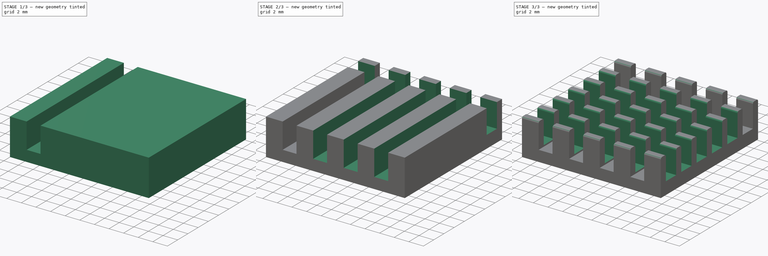
[diagram: build sequence overview — one tinted view per stage of 3, left to right]
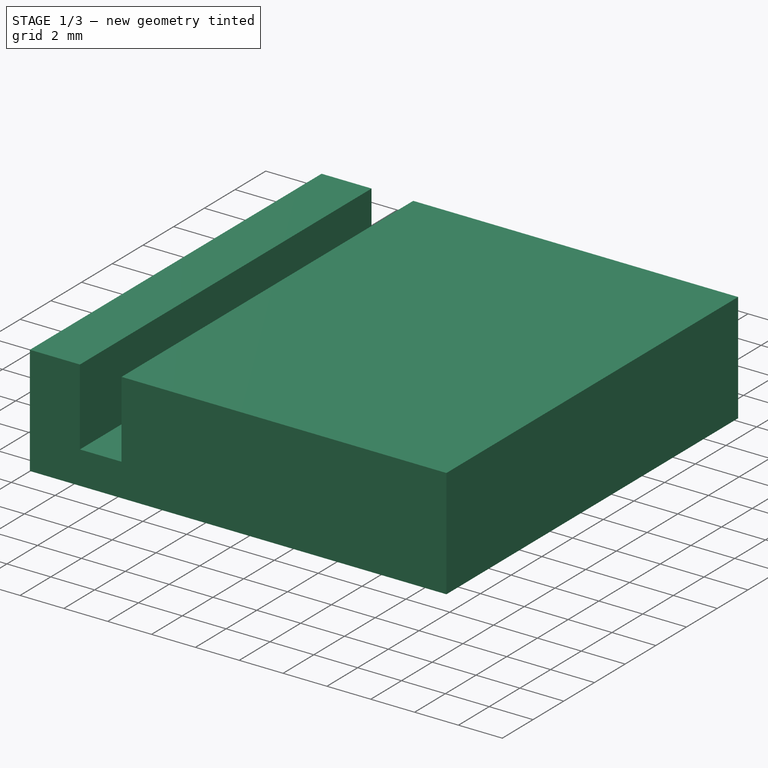
[diagram: stage 1 of 3 — iso view after this stage's code; geometry added in this stage tinted green]
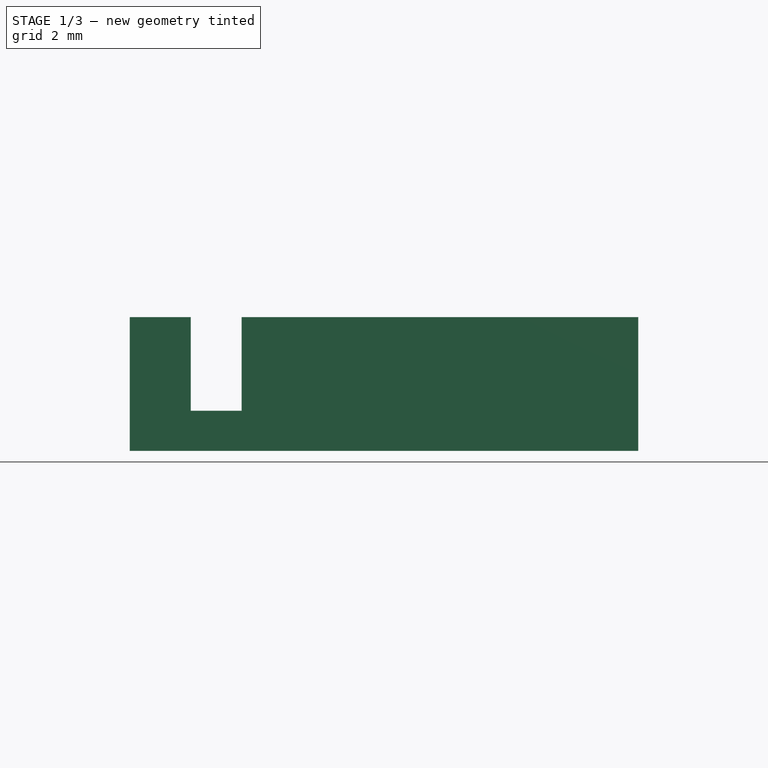
[diagram: stage 1 of 3 — front view after this stage's code; geometry added in this stage tinted green]
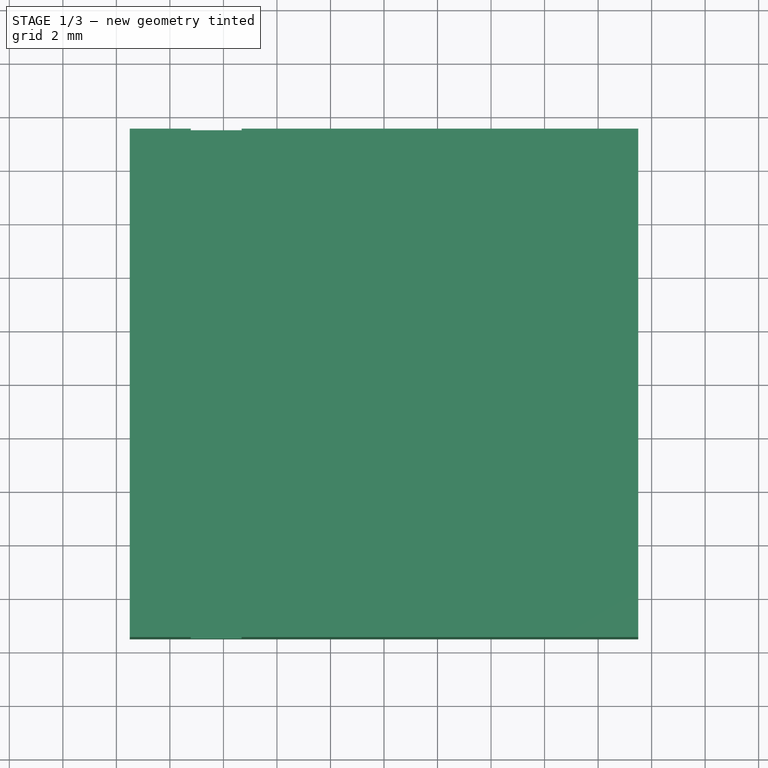
[diagram: stage 1 of 3 — top view after this stage's code; geometry added in this stage tinted green]
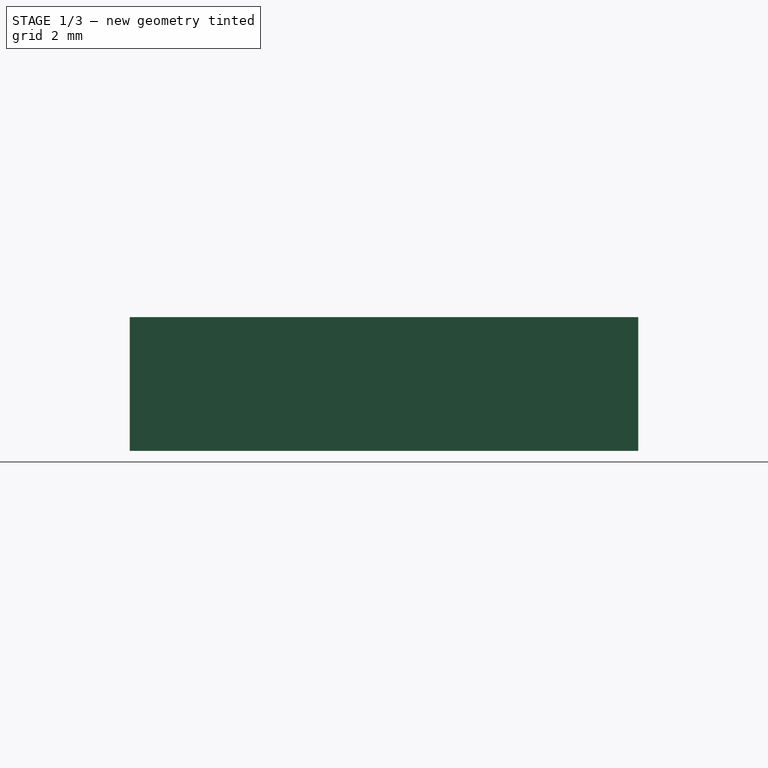
[diagram: stage 1 of 3 — right view after this stage's code; geometry added in this stage tinted green]
FCSTD DOCUMENT  (FreeCAD 0.14R3702 (Git))
Label: heat-sink-19x19x5mm
License: CC-BY 3.0
LicenseURL: http://creativecommons.org/licenses/by/3.0/
objects: Sketcher::SketchObject×3, PartDesign::Pocket×2, PartDesign::LinearPattern×2, PartDesign::Pad×1, PartDesign::Fillet×1
note: 12 computed .brp shape members not serialized (recipe doc carries the construction recipe); baked Part::Feature solids carry a one-line shape summary decoded from their .brp

FEATURE [Sketcher::SketchObject] Sketch
  sketch-geometry (5):
    g0: LineSegment StartX=-9.5 StartY=9.5 StartZ=0 EndX=9.5 EndY=9.5 EndZ=0
    g1: LineSegment StartX=9.5 StartY=9.5 StartZ=0 EndX=9.5 EndY=-9.5 EndZ=0
    g2: LineSegment StartX=9.5 StartY=-9.5 StartZ=0 EndX=-9.5 EndY=-9.5 EndZ=0
    g3: LineSegment StartX=-9.5 StartY=-9.5 StartZ=0 EndX=-9.5 EndY=9.5 EndZ=0
    g4: LineSegment [constr] StartX=-9.5 StartY=9.5 StartZ=0 EndX=9.5 EndY=-9.5 EndZ=0
  constraints (13):
    c: Coincident(g0,g1)
    c: Coincident(g1,g2)
    c: Coincident(g2,g3)
    c: Coincident(g3,g0)
    c: Horizontal(g0)
    c: Horizontal(g2)
    c: Vertical(g1)
    c: Vertical(g3)
    c: DistanceX(g0) = 19
    c: DistanceY(g1) = -19
    c: Coincident(g4,g1)
    c: Coincident(g4,g0)
    c: Symmetric(g4,g4,g-1)
FEATURE [PartDesign::Pad] Pad
  Length = 5
  Length2 = 100
  Sketch = -> Sketch
  Type = 0
FEATURE [Sketcher::SketchObject] Sketch001
  ExternalGeometry = -> [Pad]
  Placement = pos=(0,0,5) rot=(0,0,1;0rad)
  Support = -> Pad [Face6]
  sketch-geometry (4):
    g0: LineSegment StartX=-7.22 StartY=9.5 StartZ=0 EndX=-5.32 EndY=9.5 EndZ=0
    g1: LineSegment StartX=-5.32 StartY=9.5 StartZ=0 EndX=-5.32 EndY=-9.5 EndZ=0
    g2: LineSegment StartX=-5.32 StartY=-9.5 StartZ=0 EndX=-7.22 EndY=-9.5 EndZ=0
    g3: LineSegment StartX=-7.22 StartY=-9.5 StartZ=0 EndX=-7.22 EndY=9.5 EndZ=0
  constraints (12):
    c: Coincident(g0,g1)
    c: Coincident(g1,g2)
    c: Coincident(g2,g3)
    c: Coincident(g3,g0)
    c: Horizontal(g0)
    c: Horizontal(g2)
    c: Vertical(g1)
    c: Vertical(g3)
    c: DistanceX(g0) = 1.9
    c: Tangent(g0,g-3)
    c: Tangent(g2,g-4)
    c: DistanceX(g-3,g0) = 2.28
FEATURE [PartDesign::Pocket] Pocket
  Length = 3.5
  Sketch = -> Sketch001
  Type = 0
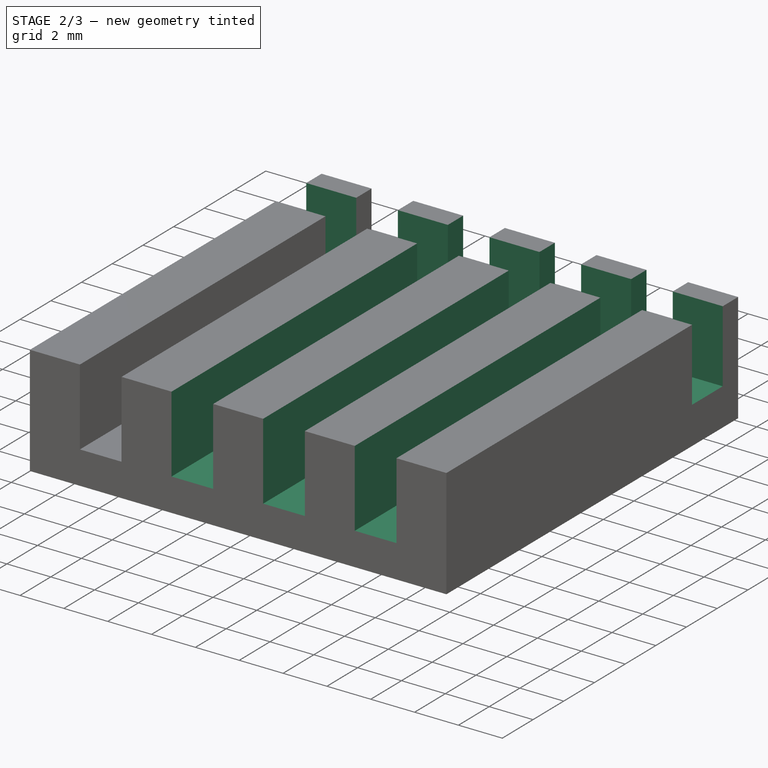
[diagram: stage 2 of 3 — iso view after this stage's code; geometry added in this stage tinted green]
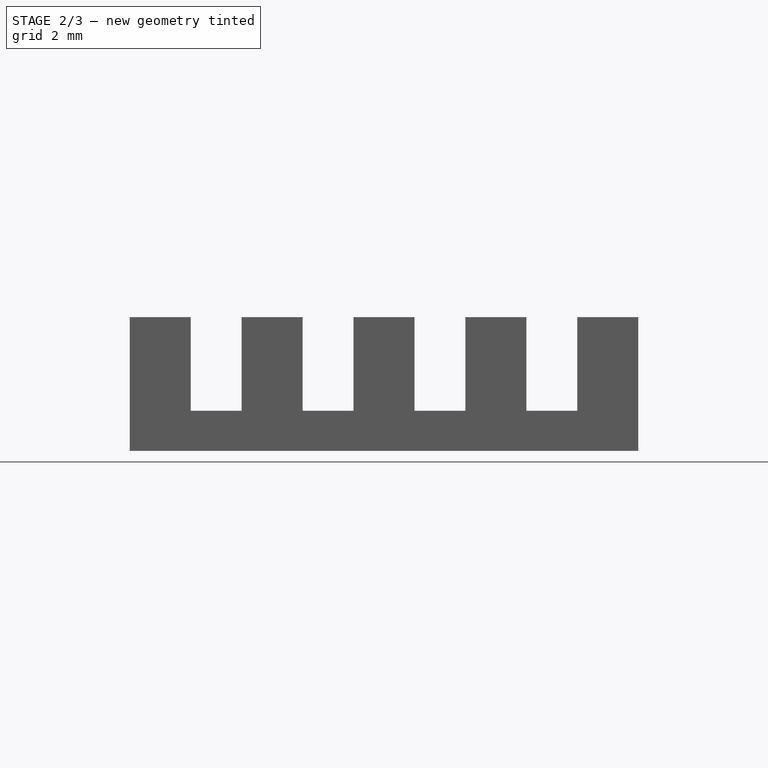
[diagram: stage 2 of 3 — front view after this stage's code; geometry added in this stage tinted green]
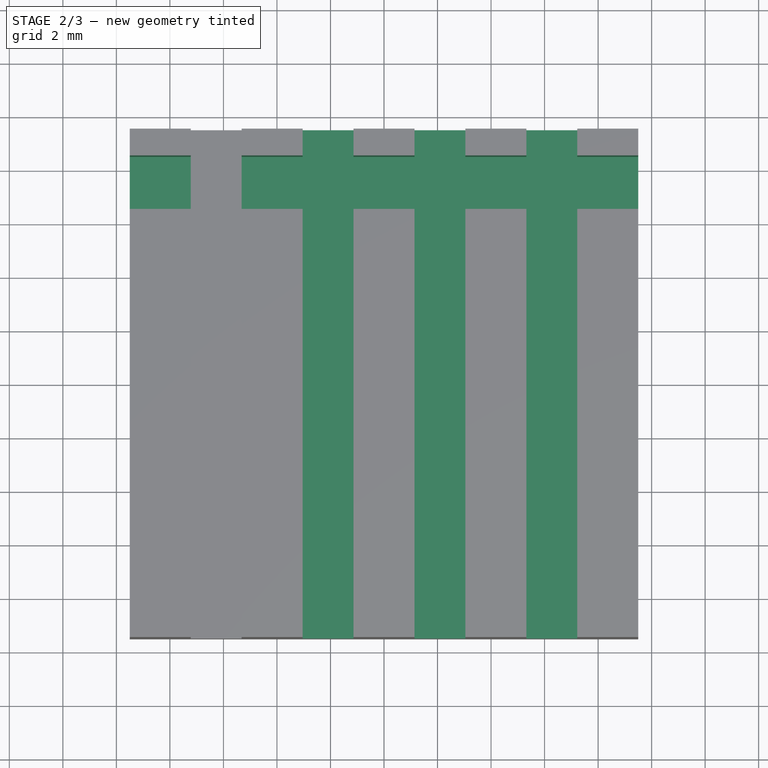
[diagram: stage 2 of 3 — top view after this stage's code; geometry added in this stage tinted green]
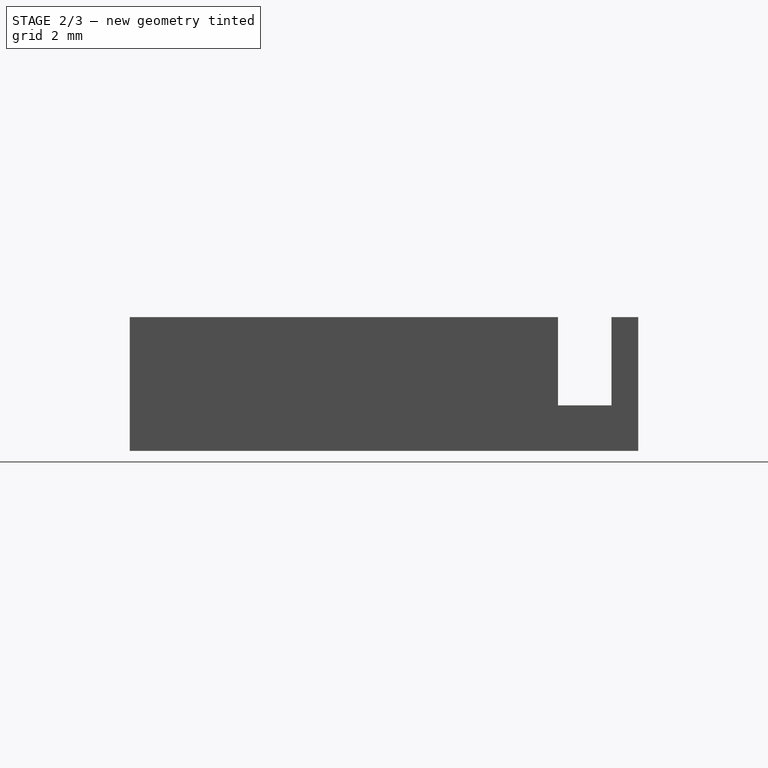
[diagram: stage 2 of 3 — right view after this stage's code; geometry added in this stage tinted green]
FEATURE [PartDesign::LinearPattern] LinearPattern
  Direction = -> Sketch001 [H_Axis]
  Length = 12.54
  Occurrences = 4
  Originals = -> [Pocket]
FEATURE [Sketcher::SketchObject] Sketch002
  ExternalGeometry = -> [LinearPattern]
  Placement = pos=(0,0,5) rot=(0,0,1;0rad)
  Support = -> LinearPattern [Face20]
  sketch-geometry (4):
    g0: LineSegment StartX=-9.5 StartY=8.5 StartZ=0 EndX=9.5 EndY=8.5 EndZ=0
    g1: LineSegment StartX=9.5 StartY=8.5 StartZ=0 EndX=9.5 EndY=6.5 EndZ=0
    g2: LineSegment StartX=9.5 StartY=6.5 StartZ=0 EndX=-9.5 EndY=6.5 EndZ=0
    g3: LineSegment StartX=-9.5 StartY=6.5 StartZ=0 EndX=-9.5 EndY=8.5 EndZ=0
  constraints (12):
    c: Coincident(g0,g1)
    c: Coincident(g1,g2)
    c: Coincident(g2,g3)
    c: Coincident(g3,g0)
    c: Horizontal(g0)
    c: Horizontal(g2)
    c: Vertical(g1)
    c: Vertical(g3)
    c: Tangent(g1,g-3)
    c: Tangent(g3,g-4)
    c: DistanceY(g0,g1) = -2
    c: DistanceY(g0,g-3) = 1
FEATURE [PartDesign::Pocket] Pocket001
  Length = 3.3
  Sketch = -> Sketch002
  Type = 0
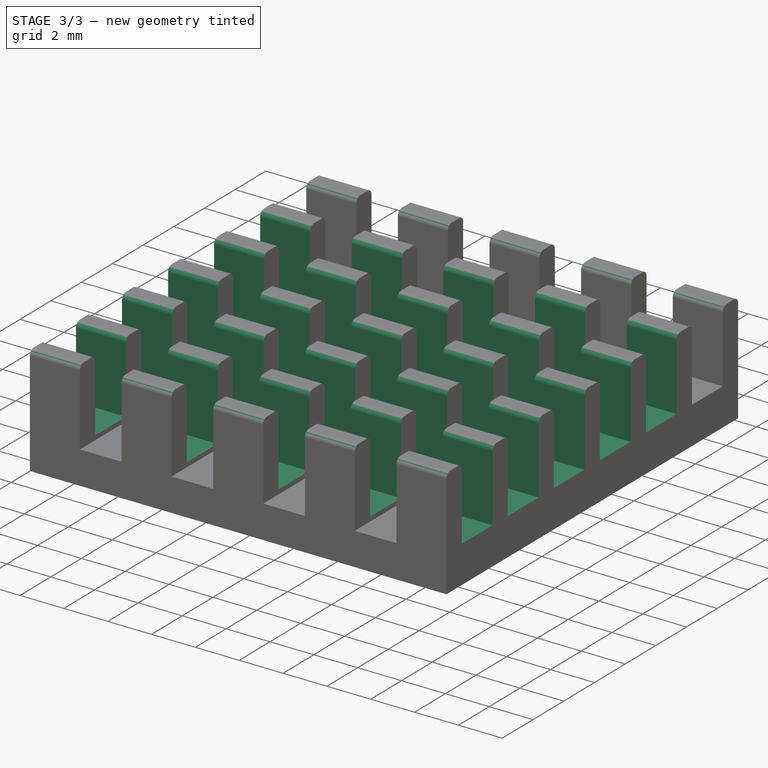
[diagram: stage 3 of 3 — iso view after this stage's code; geometry added in this stage tinted green]
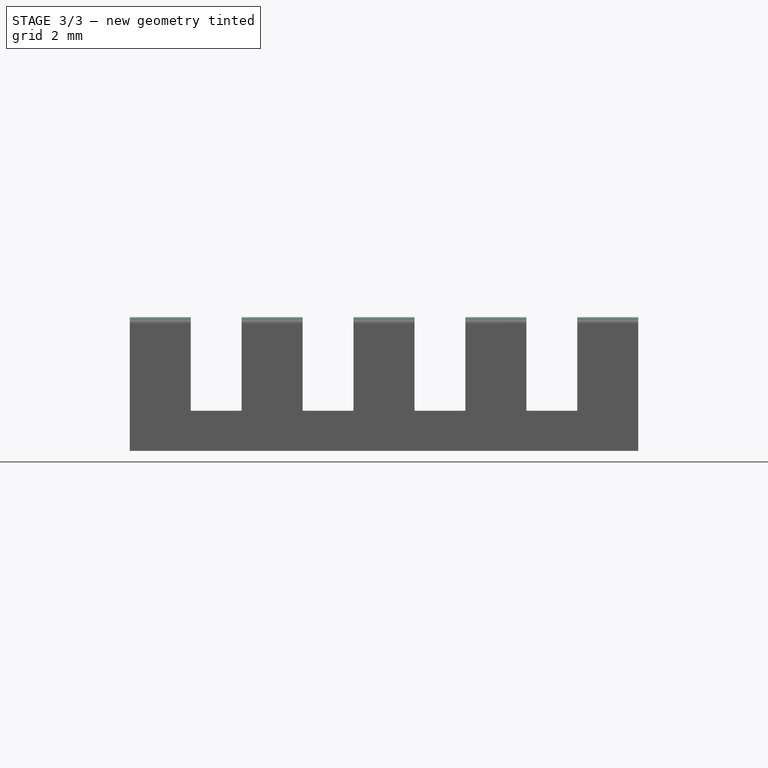
[diagram: stage 3 of 3 — front view after this stage's code; geometry added in this stage tinted green]
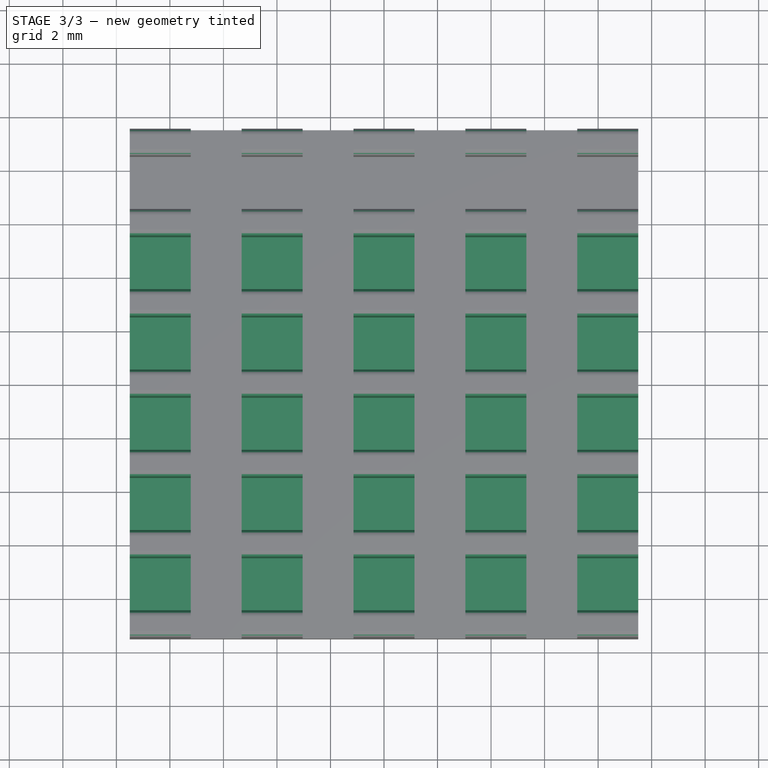
[diagram: stage 3 of 3 — top view after this stage's code; geometry added in this stage tinted green]
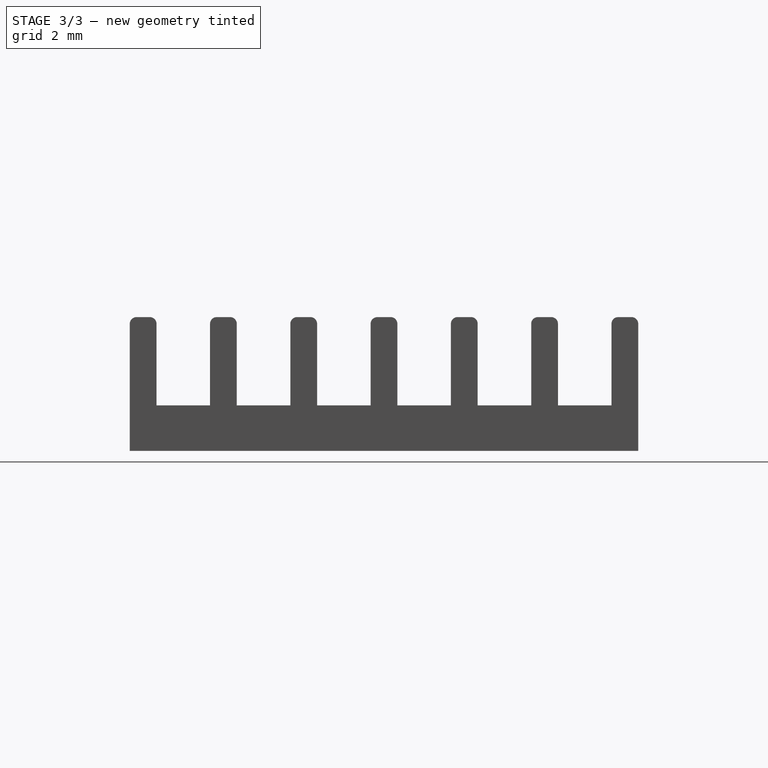
[diagram: stage 3 of 3 — right view after this stage's code; geometry added in this stage tinted green]
FEATURE [PartDesign::LinearPattern] LinearPattern001
  Direction = -> Pocket001 [Edge99]
  Length = 15
  Occurrences = 6
  Originals = -> [Pocket001]
  Reversed = true
FEATURE [PartDesign::Fillet] Fillet
  Base = -> LinearPattern001 [Edge19,Edge274,Edge218,Edge15,Edge162,Edge11,Edge106,Edge7,Edge50,Edge3,Edge325,Edge326,Edge348,Edge349,Edge371,Edge372,Edge395,Edge394,Edge418,Edge417,Edge414,Edge413,Edge390,Edge391,Edge367,Edge368,Edge344,Edge345,Edge321,Edge322,Edge317,Edge318,Edge341,Edge340,Edge363,Edge364,Edge387,Edge386,Edge410,Edge409,+30 more]
  Radius = 0.25
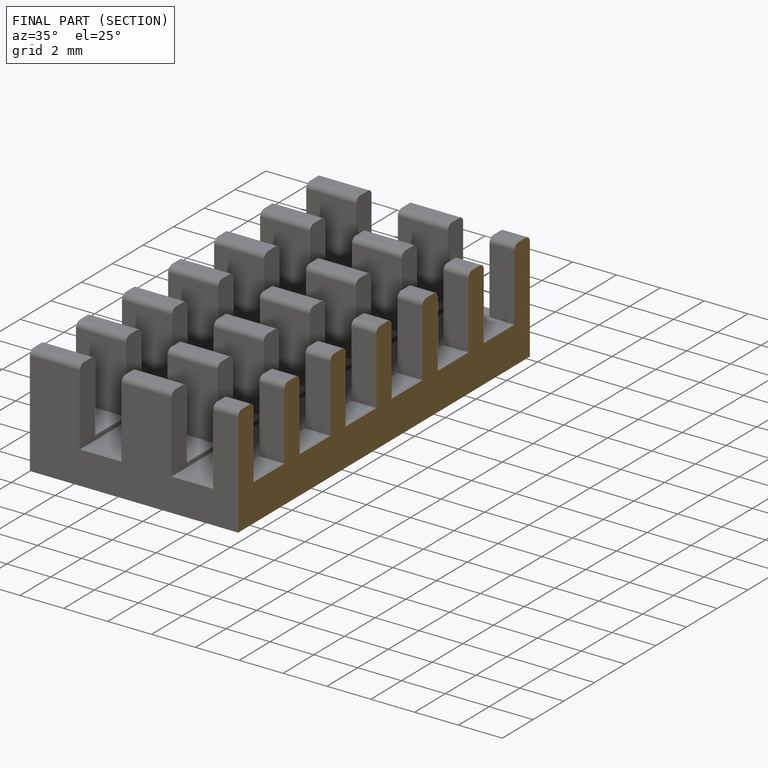
[diagram: finished part — half-section view (interior)]
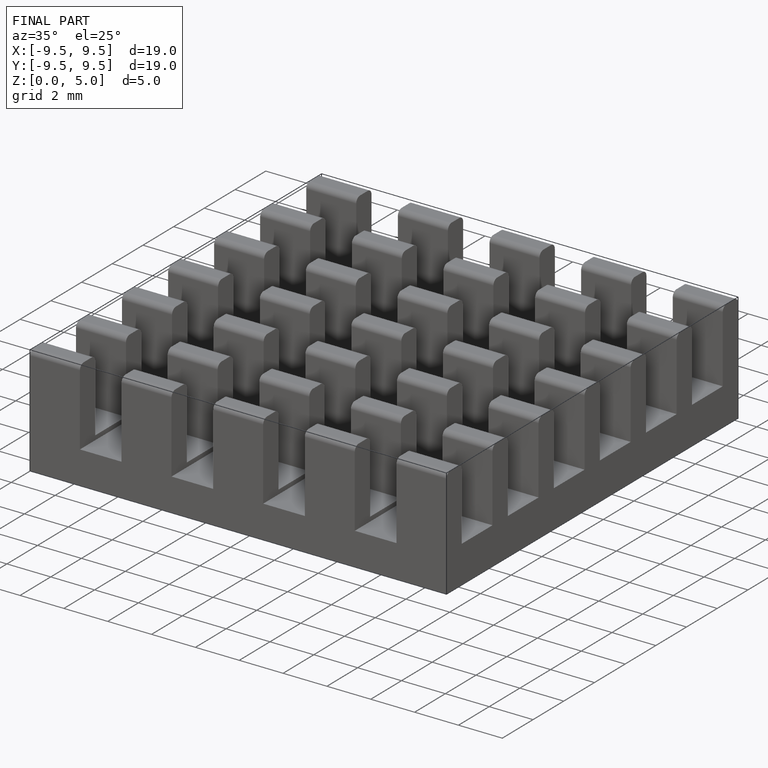
[diagram: finished part — iso view with bounding-box wireframe]
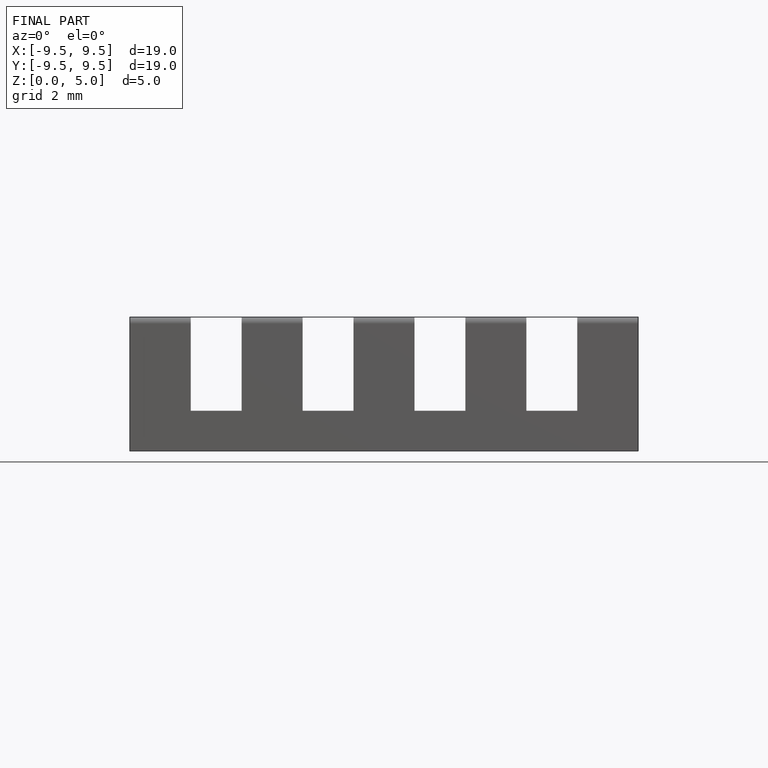
[diagram: finished part — front view with bounding-box wireframe]
